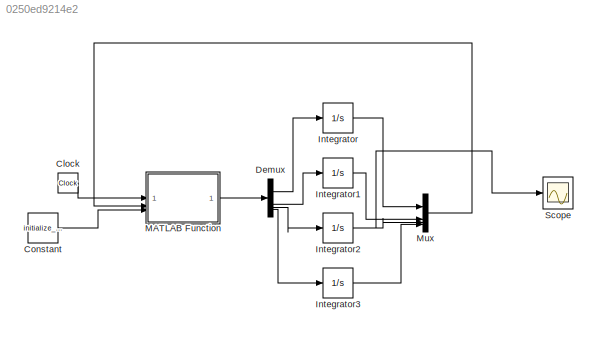
MODEL slx_0250ed9214e2
KIND model
CONFIG AbsTol = auto
CONFIG EnableMultiTasking = off
CONFIG FixedStep = auto
CONFIG MaxStep = auto
CONFIG MinStep = auto
CONFIG RelTol = 1e-3
CONFIG SampleTimeConstraint = Unconstrained
CONFIG SolverName = ode45
CONFIG StartTime = 0.0
CONFIG StopTime = 10.0
BLOCK [Clock] Clock
BLOCK [Constant] Constant
  OutDataTypeStr = Bus: slBus5
  Value = initialize_rocket_parameters()
BLOCK [Demux] Demux
BLOCK [Integrator] Integrator
BLOCK [Integrator] Integrator1
BLOCK [Integrator] Integrator2
BLOCK [Integrator] Integrator3
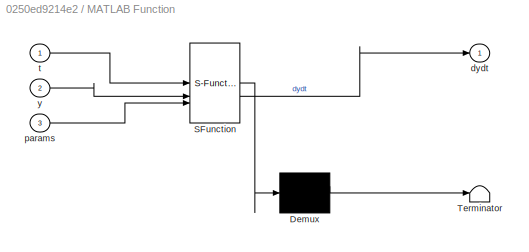
BLOCK [SubSystem] MATLAB Function
  ErrorFcn = Stateflow.Translate.translate
  PermitHierarchicalResolution = ExplicitOnly
  SFBlockType = MATLAB Function
  TreatAsAtomicUnit = on
BLOCK [Demux] MATLAB Function/ Demux 
  Outputs = 1
BLOCK [S-Function] MATLAB Function/ SFunction 
  EnableBusSupport = on
  FunctionName = sf_sfun
  PortCounts = [3 2]
  SFcnIsStateOwnerBlock = off
  SFunctionDeploymentMode = off
  Tag = Stateflow S-Function 2
BLOCK [Terminator] MATLAB Function/ Terminator 
BLOCK [Outport] MATLAB Function/dydt
BLOCK [Inport] MATLAB Function/params
  Port = 3
BLOCK [Inport] MATLAB Function/t
BLOCK [Inport] MATLAB Function/y
  Port = 2
BLOCK [Mux] Mux
  DisplayOption = bar
BLOCK [Scope] Scope
  Floating = off
  NumInputPorts = 1
  ScopeSpecificationString = Simulink.scopes.TimeScopeBlockCfg('CurrentConfiguration', extmgr.ConfigurationSet(extmgr.Configuration('Core','General UI',true),extmgr.Configuration('Core','Source UI',true),extmgr.Configuration('Sources','WiredSimulink',true),extmgr.Configuration('Visuals','Time Domain',true),extmgr.Configuration('Tools','Plot Navigation',true),extmgr.Configuration('Tools','Measurements',true)),'Version','2024b'...<+1ch>
LINE Clock:1 -> MATLAB Function:1
LINE Constant:1 -> MATLAB Function:3
LINE Demux:1 -> Integrator:1
LINE Demux:2 -> Integrator1:1
LINE Demux:3 -> Integrator2:1
LINE Demux:4 -> Integrator3:1
LINE Integrator1:1 -> Mux:2
NET Integrator2:1 -> Mux:3, Scope:1
LINE Integrator3:1 -> Mux:4
LINE Integrator:1 -> Mux:1
LINE MATLAB Function:1 -> Demux:1
LINE Mux:1 -> MATLAB Function:2
note: NET lines group one-source signal fan-out (src -> all destinations, sorted); 1:1 wires keep LINE
CHART MATLAB Function states=1 transitions=1
  STATE_LABEL 'eML_blk_kernel()'
  STATE_LABEL 'SCRIPT:\nfunction dydt = rocket_dynamics(t, y, params)\n    dydt = zeros(4,1);\n    x = y(1); vx = y(2); alt = y(3); vy = y(4);\n    \n    % Determine flight phase\n    phase = determine_flight_phase(t, alt, vy, params);\n    \n    % Compute thrust, mass, drag coeff\n    [thrust, mass, cd, ref_area] = calculate_forces(t, phase, params);\n    \n    % Atmosphere & gravity\n    [rho, g] = atmosphere_model(alt);\n...<+3259ch>'
CHART  states=0 transitions=0
